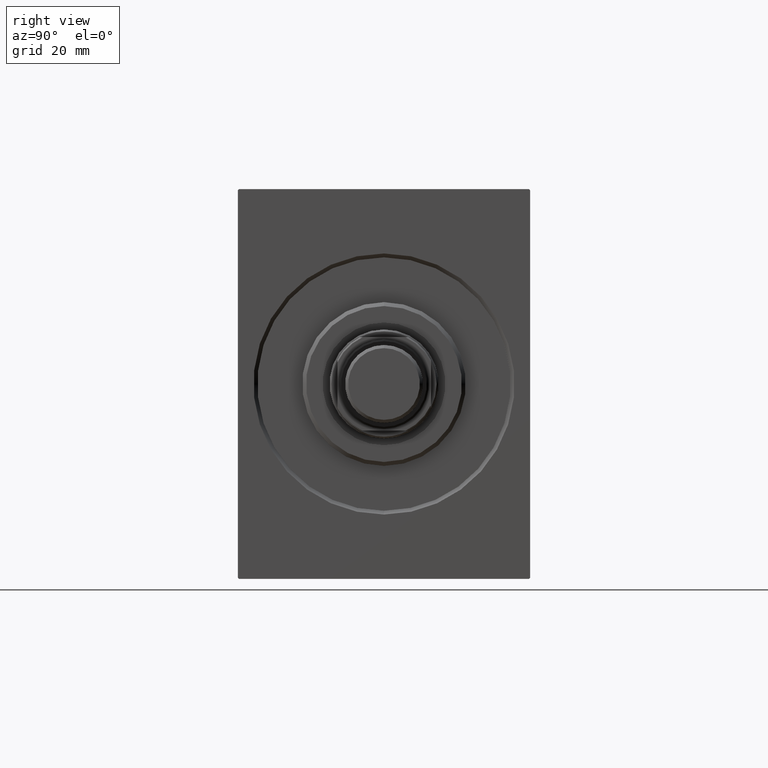
[diagram: clean part render]
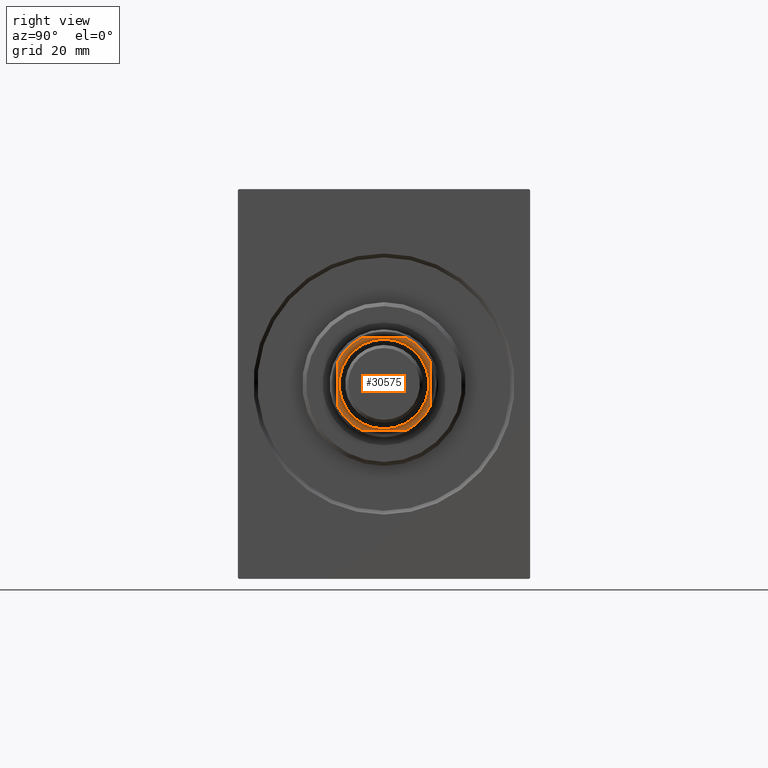
[diagram: same view with one face highlighted and labeled with its STEP entity id]
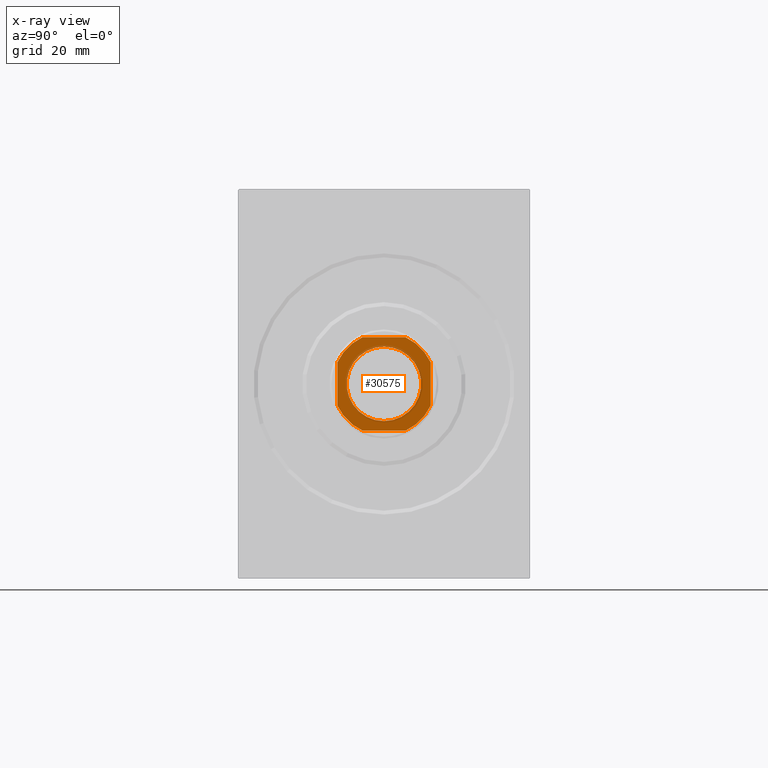
[diagram: x-ray of the same camera — body ghosted, the highlighted face saturated]
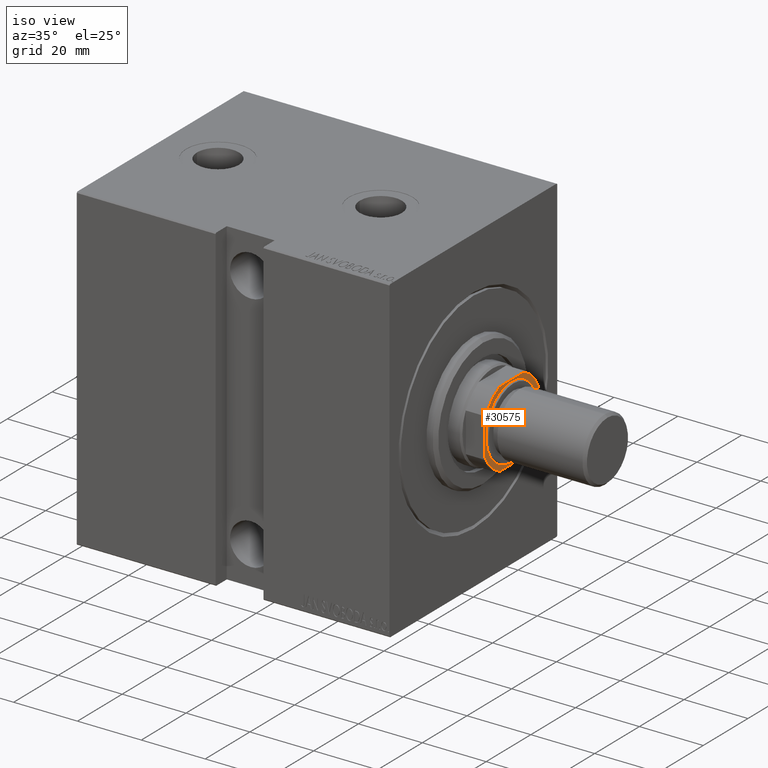
[diagram: same view with one face highlighted and labeled with its STEP entity id]
A machine part, right view. The second image highlights one B-rep face of the part: STEP entity #30575.
The next image is the same camera in x-ray: the body ghosted, the highlighted face saturated — about 12% of this face is hidden behind the body in this view.
A second angle (iso view) of the same face is appended — the face is thin or edge-on in the first view.
In plain terms, the highlighted planar face has unit normal (1, 0, -0).
Its self-contained STEP definition (entity closure, byte-faithful):
#25 = DIRECTION ( 'NONE',  ( 0.000000000000000000, -0.000000000000000000, -1.000000000000000000 ) ) ;
#192 = DIRECTION ( 'NONE',  ( 1.000000000000000000, 0.000000000000000000, 0.000000000000000000 ) ) ;
#381 = VERTEX_POINT ( 'NONE', #38497 ) ;
#758 = VERTEX_POINT ( 'NONE', #29204 ) ;
#938 = DIRECTION ( 'NONE',  ( -0.000000000000000000, 0.000000000000000000, 1.000000000000000000 ) ) ;
#1856 = VERTEX_POINT ( 'NONE', #14486 ) ;
#3556 = ORIENTED_EDGE ( 'NONE', *, *, #6156, .T. ) ;
#3974 = CARTESIAN_POINT ( 'NONE',  ( 0.000000000000000000, 0.000000000000000000, 96.00000000000000000 ) ) ;
#4047 = CARTESIAN_POINT ( 'NONE',  ( 11.99999999999999645, 11.99999999999999645, 96.00000000000000000 ) ) ;
#4065 = LINE ( 'NONE', #16604, #23267 ) ;
#4777 = AXIS2_PLACEMENT_3D ( 'NONE', #8653, #12166, #41777 ) ;
#5411 = CIRCLE ( 'NONE', #12447, 13.20000000000000995 ) ;
#6156 = EDGE_CURVE ( 'NONE', #16765, #33988, #4065, .T. ) ;
#6420 = DIRECTION ( 'NONE',  ( 1.000000000000000000, 0.000000000000000000, 0.000000000000000000 ) ) ;
#7797 = ORIENTED_EDGE ( 'NONE', *, *, #26045, .T. ) ;
#7831 = VERTEX_POINT ( 'NONE', #37005 ) ;
#8025 = ORIENTED_EDGE ( 'NONE', *, *, #8321, .T. ) ;
#8140 = CARTESIAN_POINT ( 'NONE',  ( -12.00000000000000355, 11.99999999999999645, 96.00000000000000000 ) ) ;
#8321 = EDGE_CURVE ( 'NONE', #39641, #758, #24882, .T. ) ;
#8653 = CARTESIAN_POINT ( 'NONE',  ( 0.000000000000000000, 0.000000000000000000, 96.00000000000000000 ) ) ;
#9014 = ORIENTED_EDGE ( 'NONE', *, *, #25753, .T. ) ;
#10906 = CARTESIAN_POINT ( 'NONE',  ( 5.499090833947041901, 11.99999999999999645, 96.00000000000000000 ) ) ;
#11007 = DIRECTION ( 'NONE',  ( 2.168404344971008868E-16, -1.000000000000000000, 0.000000000000000000 ) ) ;
#12166 = DIRECTION ( 'NONE',  ( -0.000000000000000000, 0.000000000000000000, 1.000000000000000000 ) ) ;
#12447 = AXIS2_PLACEMENT_3D ( 'NONE', #37301, #37084, #192 ) ;
#13739 = DIRECTION ( 'NONE',  ( -1.000000000000000000, -0.000000000000000000, -0.000000000000000000 ) ) ;
#13924 = CARTESIAN_POINT ( 'NONE',  ( 11.99999999999999645, 5.499090833947039236, 96.00000000000000000 ) ) ;
#14130 = FACE_BOUND ( 'NONE', #33340, .T. ) ;
#14352 = FACE_OUTER_BOUND ( 'NONE', #38347, .T. ) ;
#14486 = CARTESIAN_POINT ( 'NONE',  ( -12.00000000000000000, -5.499090833947057888, 96.00000000000000000 ) ) ;
#16013 = CIRCLE ( 'NONE', #4777, 13.20000000000002238 ) ;
#16566 = CARTESIAN_POINT ( 'NONE',  ( -12.00000000000000178, 5.499090833947057000, 96.00000000000000000 ) ) ;
#16604 = CARTESIAN_POINT ( 'NONE',  ( -12.00000000000000355, 11.99999999999999645, 96.00000000000000000 ) ) ;
#16765 = VERTEX_POINT ( 'NONE', #10906 ) ;
#17963 = DIRECTION ( 'NONE',  ( 0.000000000000000000, -0.000000000000000000, -1.000000000000000000 ) ) ;
#18084 = VECTOR ( 'NONE', #11007, 1000.000000000000000 ) ;
#18574 = EDGE_CURVE ( 'NONE', #7831, #381, #33177, .T. ) ;
#18940 = VERTEX_POINT ( 'NONE', #33798 ) ;
#18950 = CARTESIAN_POINT ( 'NONE',  ( -11.99999999999999822, -12.00000000000000355, 96.00000000000000000 ) ) ;
#20937 = DIRECTION ( 'NONE',  ( 1.000000000000000000, 0.000000000000000000, 0.000000000000000000 ) ) ;
#21473 = DIRECTION ( 'NONE',  ( 1.000000000000000000, 0.000000000000000000, 0.000000000000000000 ) ) ;
#23123 = DIRECTION ( 'NONE',  ( -0.000000000000000000, 0.000000000000000000, 1.000000000000000000 ) ) ;
#23267 = VECTOR ( 'NONE', #13739, 1000.000000000000000 ) ;
#23622 = ORIENTED_EDGE ( 'NONE', *, *, #29028, .T. ) ;
#23886 = ORIENTED_EDGE ( 'NONE', *, *, #38075, .T. ) ;
#24850 = DIRECTION ( 'NONE',  ( 1.000000000000000000, 0.000000000000000000, 0.000000000000000000 ) ) ;
#24882 = LINE ( 'NONE', #18950, #42020 ) ;
#24967 = EDGE_CURVE ( 'NONE', #381, #7831, #33235, .T. ) ;
#25753 = EDGE_CURVE ( 'NONE', #1856, #39641, #43061, .T. ) ;
#26045 = EDGE_CURVE ( 'NONE', #18940, #34050, #40696, .T. ) ;
#26537 = ORIENTED_EDGE ( 'NONE', *, *, #40246, .T. ) ;
#28142 = DIRECTION ( 'NONE',  ( -0.000000000000000000, 0.000000000000000000, 1.000000000000000000 ) ) ;
#28622 = ORIENTED_EDGE ( 'NONE', *, *, #24967, .T. ) ;
#29028 = EDGE_CURVE ( 'NONE', #758, #18940, #40330, .T. ) ;
#29204 = CARTESIAN_POINT ( 'NONE',  ( 5.499090833947025914, -12.00000000000000355, 96.00000000000000000 ) ) ;
#30124 = CARTESIAN_POINT ( 'NONE',  ( 0.000000000000000000, 0.000000000000000000, 96.00000000000000000 ) ) ;
#30575 = ADVANCED_FACE ( 'NONE', ( #14130, #14352 ), #31676, .T. ) ;
#31270 = DIRECTION ( 'NONE',  ( -2.168404344971008868E-16, 1.000000000000000000, -0.000000000000000000 ) ) ;
#31429 = CARTESIAN_POINT ( 'NONE',  ( 0.000000000000000000, 0.000000000000000000, 96.00000000000000000 ) ) ;
#31676 = PLANE ( 'NONE',  #41792 ) ;
#33177 = CIRCLE ( 'NONE', #37411, 9.549999999999988276 ) ;
#33235 = CIRCLE ( 'NONE', #34667, 9.549999999999988276 ) ;
#33340 = EDGE_LOOP ( 'NONE', ( #28622, #39638 ) ) ;
#33348 = ORIENTED_EDGE ( 'NONE', *, *, #41931, .T. ) ;
#33798 = CARTESIAN_POINT ( 'NONE',  ( 12.00000000000000000, -5.499090833947034795, 96.00000000000000000 ) ) ;
#33988 = VERTEX_POINT ( 'NONE', #42692 ) ;
#33998 = VERTEX_POINT ( 'NONE', #16566 ) ;
#34050 = VERTEX_POINT ( 'NONE', #13924 ) ;
#34667 = AXIS2_PLACEMENT_3D ( 'NONE', #3974, #25, #40852 ) ;
#34691 = AXIS2_PLACEMENT_3D ( 'NONE', #31429, #28142, #24850 ) ;
#35421 = DIRECTION ( 'NONE',  ( 1.000000000000000000, 0.000000000000000000, 0.000000000000000000 ) ) ;
#36842 = AXIS2_PLACEMENT_3D ( 'NONE', #30124, #23123, #6420 ) ;
#37005 = CARTESIAN_POINT ( 'NONE',  ( -9.549999999999988276, 1.169537693185720980E-15, 96.00000000000000000 ) ) ;
#37084 = DIRECTION ( 'NONE',  ( -0.000000000000000000, 0.000000000000000000, 1.000000000000000000 ) ) ;
#37301 = CARTESIAN_POINT ( 'NONE',  ( 0.000000000000000000, 0.000000000000000000, 96.00000000000000000 ) ) ;
#37411 = AXIS2_PLACEMENT_3D ( 'NONE', #37496, #17963, #21473 ) ;
#37496 = CARTESIAN_POINT ( 'NONE',  ( 0.000000000000000000, 0.000000000000000000, 96.00000000000000000 ) ) ;
#38075 = EDGE_CURVE ( 'NONE', #34050, #16765, #5411, .T. ) ;
#38347 = EDGE_LOOP ( 'NONE', ( #7797, #23886, #3556, #33348, #26537, #9014, #8025, #23622 ) ) ;
#38497 = CARTESIAN_POINT ( 'NONE',  ( 9.549999999999988276, 0.000000000000000000, 96.00000000000000000 ) ) ;
#39638 = ORIENTED_EDGE ( 'NONE', *, *, #18574, .T. ) ;
#39641 = VERTEX_POINT ( 'NONE', #42986 ) ;
#40246 = EDGE_CURVE ( 'NONE', #33998, #1856, #41048, .T. ) ;
#40330 = CIRCLE ( 'NONE', #36842, 13.20000000000000995 ) ;
#40665 = CARTESIAN_POINT ( 'NONE',  ( 0.000000000000000000, 0.000000000000000000, 96.00000000000000000 ) ) ;
#40696 = LINE ( 'NONE', #4047, #42384 ) ;
#40852 = DIRECTION ( 'NONE',  ( 1.000000000000000000, 0.000000000000000000, 0.000000000000000000 ) ) ;
#41048 = LINE ( 'NONE', #8140, #18084 ) ;
#41777 = DIRECTION ( 'NONE',  ( 1.000000000000000000, 0.000000000000000000, 0.000000000000000000 ) ) ;
#41792 = AXIS2_PLACEMENT_3D ( 'NONE', #40665, #938, #20937 ) ;
#41931 = EDGE_CURVE ( 'NONE', #33988, #33998, #16013, .T. ) ;
#42020 = VECTOR ( 'NONE', #35421, 1000.000000000000000 ) ;
#42384 = VECTOR ( 'NONE', #31270, 1000.000000000000000 ) ;
#42692 = CARTESIAN_POINT ( 'NONE',  ( -5.499090833947067658, 11.99999999999999645, 96.00000000000000000 ) ) ;
#42986 = CARTESIAN_POINT ( 'NONE',  ( -5.499090833947052559, -12.00000000000000355, 96.00000000000000000 ) ) ;
#43061 = CIRCLE ( 'NONE', #34691, 13.20000000000002238 ) ;